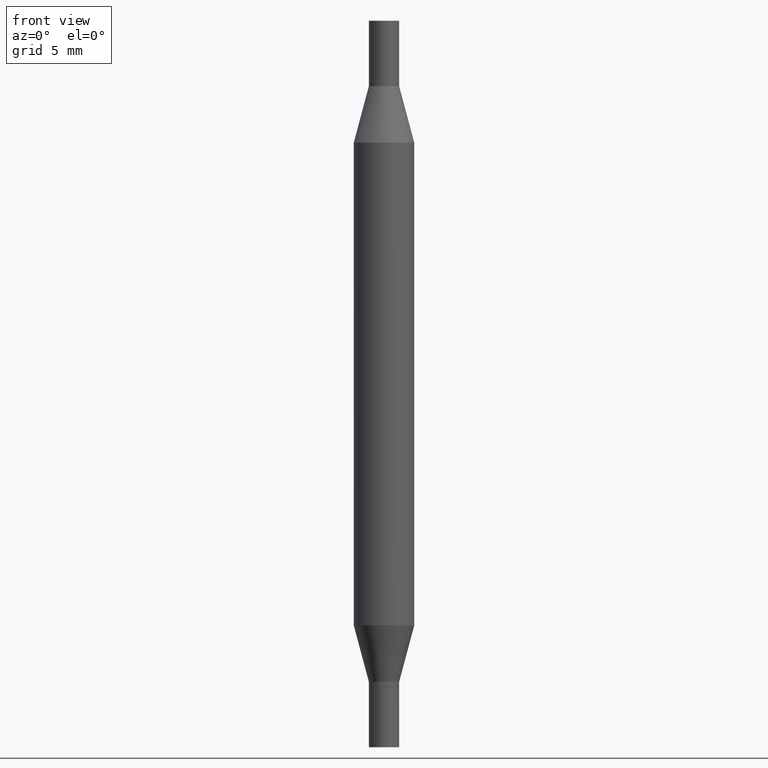
[diagram: clean part render]
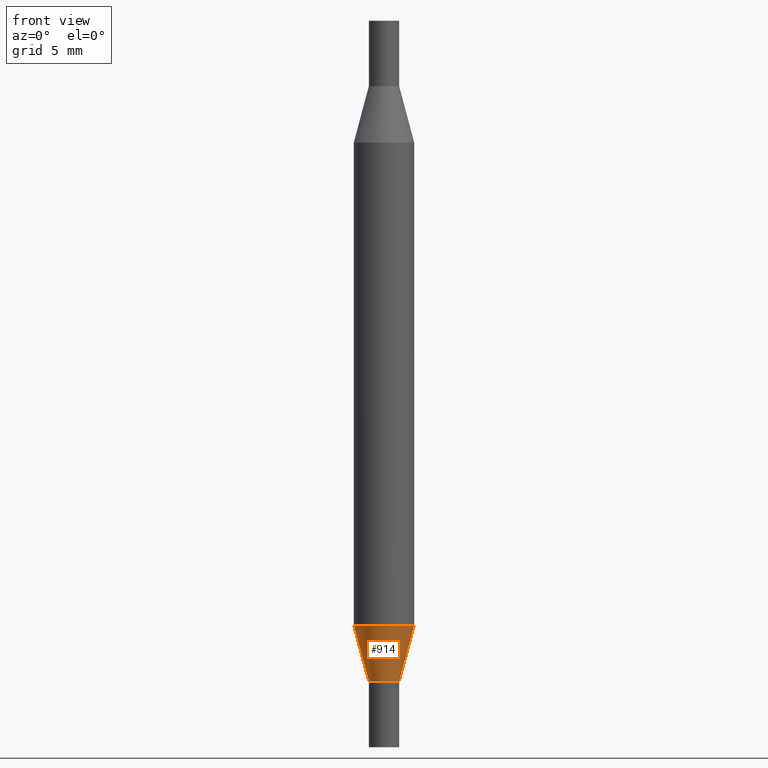
[diagram: same view with one face highlighted and labeled with its STEP entity id]
A machine part, front view. The second image highlights one B-rep face of the part: STEP entity #914.
In plain terms, the highlighted conical surface has half-angle 15 deg.
Its self-contained STEP definition (entity closure, byte-faithful):
#2 = CARTESIAN_POINT ( 'NONE',  ( 3.052858238161216211E-29, -4.358672472825851059E-15, -1.248373412263471316 ) ) ;
#9 = DIRECTION ( 'NONE',  ( 0.2588190451025211281, 1.565188264969622954E-15, 0.9659258262890679791 ) ) ;
#33 = VERTEX_POINT ( 'NONE', #153 ) ;
#69 = DIRECTION ( 'NONE',  ( -0.2588190451025211281, 5.211531920934547886E-15, 0.9659258262890679791 ) ) ;
#79 = ORIENTED_EDGE ( 'NONE', *, *, #974, .F. ) ;
#89 = VERTEX_POINT ( 'NONE', #573 ) ;
#93 = LINE ( 'NONE', #693, #856 ) ;
#153 = CARTESIAN_POINT ( 'NONE',  ( 0.06250000000000000000, -4.795107640181242728E-15, -1.248373412263471316 ) ) ;
#166 = VERTEX_POINT ( 'NONE', #295 ) ;
#205 = CARTESIAN_POINT ( 'NONE',  ( 3.338064920442711275E-29, -4.765872027520892492E-15, -1.364999999999999769 ) ) ;
#216 = LINE ( 'NONE', #743, #624 ) ;
#226 = ORIENTED_EDGE ( 'NONE', *, *, #659, .T. ) ;
#295 = CARTESIAN_POINT ( 'NONE',  ( 0.03124999999999964265, -4.984089611198585960E-15, -1.364999999999999769 ) ) ;
#296 = CARTESIAN_POINT ( 'NONE',  ( -0.03124999999999964265, -4.560411958955369806E-15, -1.364999999999999769 ) ) ;
#301 = ORIENTED_EDGE ( 'NONE', *, *, #537, .F. ) ;
#410 = CONICAL_SURFACE ( 'NONE', #439, 0.03124999999999964265, 0.2617993877991498519 ) ;
#413 = VERTEX_POINT ( 'NONE', #296 ) ;
#439 = AXIS2_PLACEMENT_3D ( 'NONE', #598, #890, #440 ) ;
#440 = DIRECTION ( 'NONE',  ( 1.000000000000000000, -6.982962677686280121E-15, 0.000000000000000000 ) ) ;
#474 = CIRCLE ( 'NONE', #915, 0.03124999999999964265 ) ;
#496 = ORIENTED_EDGE ( 'NONE', *, *, #968, .T. ) ;
#537 = EDGE_CURVE ( 'NONE', #413, #89, #216, .T. ) ;
#573 = CARTESIAN_POINT ( 'NONE',  ( -0.06250000000000000000, -2.189829879271638760E-15, -1.248373412263471316 ) ) ;
#587 = CIRCLE ( 'NONE', #707, 0.06250000000000000000 ) ;
#598 = CARTESIAN_POINT ( 'NONE',  ( 3.338064920442711275E-29, -4.765872027520892492E-15, -1.364999999999999769 ) ) ;
#610 = EDGE_LOOP ( 'NONE', ( #301, #496, #226, #79 ) ) ;
#624 = VECTOR ( 'NONE', #69, 39.37007874015748854 ) ;
#659 = EDGE_CURVE ( 'NONE', #166, #33, #93, .T. ) ;
#693 = CARTESIAN_POINT ( 'NONE',  ( 0.03124999999999964265, -4.984089611198585960E-15, -1.364999999999999769 ) ) ;
#707 = AXIS2_PLACEMENT_3D ( 'NONE', #2, #975, #731 ) ;
#731 = DIRECTION ( 'NONE',  ( 1.000000000000000000, -6.982962677686270655E-15, 0.000000000000000000 ) ) ;
#743 = CARTESIAN_POINT ( 'NONE',  ( -0.03124999999999964265, -4.543827422595863550E-15, -1.364999999999999769 ) ) ;
#805 = DIRECTION ( 'NONE',  ( -2.445468806185136597E-29, 3.491481338843145583E-15, 1.000000000000000000 ) ) ;
#824 = FACE_OUTER_BOUND ( 'NONE', #610, .T. ) ;
#856 = VECTOR ( 'NONE', #9, 39.37007874015748854 ) ;
#890 = DIRECTION ( 'NONE',  ( -2.445468806185136597E-29, 3.491481338843145583E-15, 1.000000000000000000 ) ) ;
#897 = DIRECTION ( 'NONE',  ( 1.000000000000000000, -6.982962677686280121E-15, 0.000000000000000000 ) ) ;
#914 = ADVANCED_FACE ( 'NONE', ( #824 ), #410, .T. ) ;
#915 = AXIS2_PLACEMENT_3D ( 'NONE', #205, #805, #897 ) ;
#968 = EDGE_CURVE ( 'NONE', #413, #166, #474, .T. ) ;
#974 = EDGE_CURVE ( 'NONE', #89, #33, #587, .T. ) ;
#975 = DIRECTION ( 'NONE',  ( -2.445468806185136597E-29, 3.491481338843145583E-15, 1.000000000000000000 ) ) ;